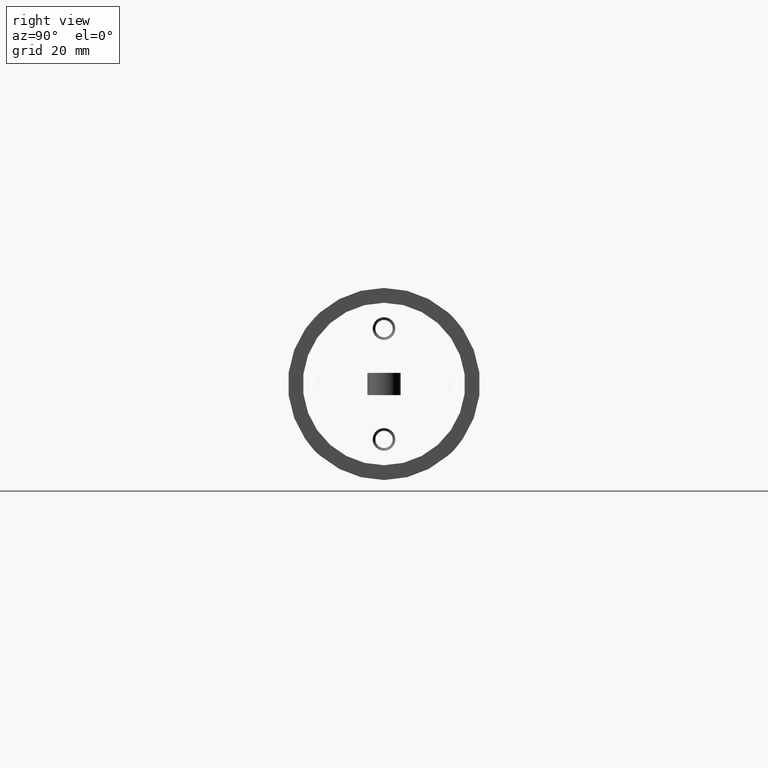
[diagram: clean part render]
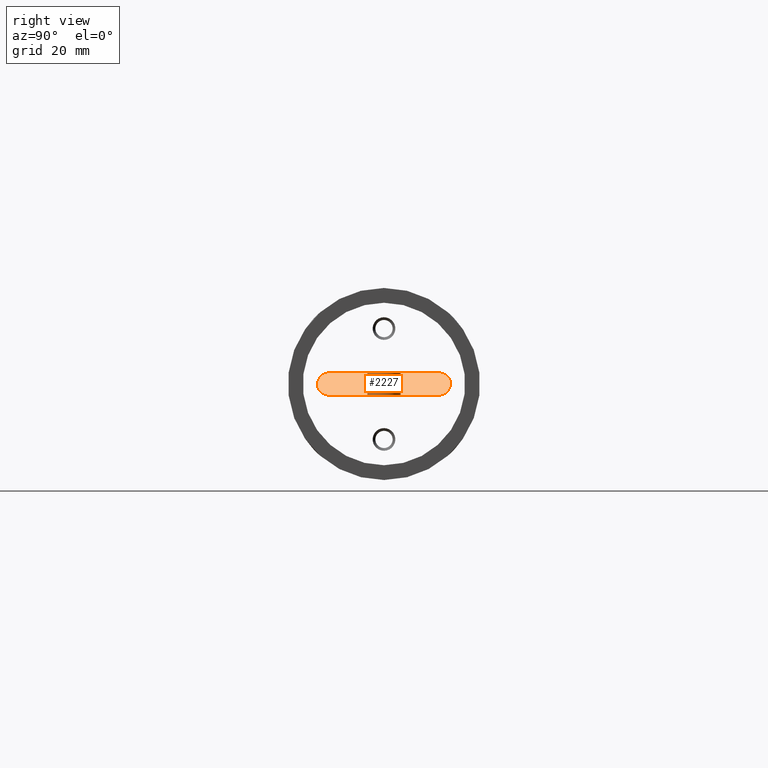
[diagram: same view with one face highlighted and labeled with its STEP entity id]
A machine part, right view. The second image highlights one B-rep face of the part: STEP entity #2227.
In plain terms, the highlighted planar face has unit normal (1, 0, -0).
Its self-contained STEP definition (entity closure, byte-faithful):
#204 = EDGE_CURVE ( 'NONE', #2606, #9467, #1307, .T. ) ;
#597 = EDGE_LOOP ( 'NONE', ( #2374, #2384, #647, #1630 ) ) ;
#610 = AXIS2_PLACEMENT_3D ( 'NONE', #5180, #5143, #5153 ) ;
#647 = ORIENTED_EDGE ( 'NONE', *, *, #204, .T. ) ;
#1307 = CIRCLE ( 'NONE', #610, 0.09374999999999998600 ) ;
#1630 = ORIENTED_EDGE ( 'NONE', *, *, #2626, .F. ) ;
#1694 = DIRECTION ( 'NONE',  ( -5.729821613754581700E-034, -1.000000000000000000, -1.648214956177438100E-017 ) ) ;
#1754 = CARTESIAN_POINT ( 'NONE',  ( 2.875000000000000400, -0.4687499926358005300, 0.09374994372702030700 ) ) ;
#1820 = CARTESIAN_POINT ( 'NONE',  ( 2.875000000000000400, -0.4687499926358005300, 0.09374994372702030700 ) ) ;
#1884 = CARTESIAN_POINT ( 'NONE',  ( 2.875000000000000400, -0.4687499926358005300, -0.09375005627297967900 ) ) ;
#2227 = ADVANCED_FACE ( 'NONE', ( #3961 ), #8100, .F. ) ;
#2374 = ORIENTED_EDGE ( 'NONE', *, *, #3549, .T. ) ;
#2384 = ORIENTED_EDGE ( 'NONE', *, *, #7243, .F. ) ;
#2406 = LINE ( 'NONE', #4875, #4313 ) ;
#2606 = VERTEX_POINT ( 'NONE', #1884 ) ;
#2626 = EDGE_CURVE ( 'NONE', #7805, #9467, #8431, .T. ) ;
#3035 = VERTEX_POINT ( 'NONE', #8906 ) ;
#3549 = EDGE_CURVE ( 'NONE', #7805, #3035, #6205, .T. ) ;
#3961 = FACE_OUTER_BOUND ( 'NONE', #597, .T. ) ;
#4102 = AXIS2_PLACEMENT_3D ( 'NONE', #10117, #10089, #10084 ) ;
#4313 = VECTOR ( 'NONE', #4610, 39.37007874015748100 ) ;
#4610 = DIRECTION ( 'NONE',  ( -6.932767587913007600E-034, 1.000000000000000000, -1.994249035374912900E-017 ) ) ;
#4875 = CARTESIAN_POINT ( 'NONE',  ( 2.875000000000000400, -0.4687499926358005300, -0.09375005627297967900 ) ) ;
#5143 = DIRECTION ( 'NONE',  ( -1.000000000000000000, -4.554757781245011700E-018, 3.476380063340317700E-017 ) ) ;
#5153 = DIRECTION ( 'NONE',  ( 0.0000000000000000000, 0.0000000000000000000, 1.000000000000000000 ) ) ;
#5180 = CARTESIAN_POINT ( 'NONE',  ( 2.875000000000000400, -0.4687499926358005300, -5.627297975870216100E-008 ) ) ;
#6205 = CIRCLE ( 'NONE', #4102, 0.09374999999999998600 ) ;
#6452 = VECTOR ( 'NONE', #1694, 39.37007874015748100 ) ;
#7243 = EDGE_CURVE ( 'NONE', #2606, #3035, #2406, .T. ) ;
#7564 = AXIS2_PLACEMENT_3D ( 'NONE', #7863, #7827, #7804 ) ;
#7804 = DIRECTION ( 'NONE',  ( -3.476380063340317700E-017, 0.0000000000000000000, -1.000000000000000000 ) ) ;
#7805 = VERTEX_POINT ( 'NONE', #8346 ) ;
#7827 = DIRECTION ( 'NONE',  ( 1.000000000000000000, 4.554757781245011700E-018, -3.476380063340317700E-017 ) ) ;
#7863 = CARTESIAN_POINT ( 'NONE',  ( 2.875000000000000400, -0.4687499926358005300, -5.627297975870216100E-008 ) ) ;
#8100 = PLANE ( 'NONE',  #7564 ) ;
#8346 = CARTESIAN_POINT ( 'NONE',  ( 2.875000000000000400, 0.4687500073641994700, 0.09374994372702032100 ) ) ;
#8431 = LINE ( 'NONE', #1820, #6452 ) ;
#8906 = CARTESIAN_POINT ( 'NONE',  ( 2.875000000000000400, 0.4687500073641994700, -0.09375005627297969300 ) ) ;
#9467 = VERTEX_POINT ( 'NONE', #1754 ) ;
#10084 = DIRECTION ( 'NONE',  ( 0.0000000000000000000, 0.0000000000000000000, 1.000000000000000000 ) ) ;
#10089 = DIRECTION ( 'NONE',  ( -1.000000000000000000, -4.554757781245011700E-018, 3.476380063340317700E-017 ) ) ;
#10117 = CARTESIAN_POINT ( 'NONE',  ( 2.875000000000000400, 0.4687500073641994700, -5.627297967469708000E-008 ) ) ;